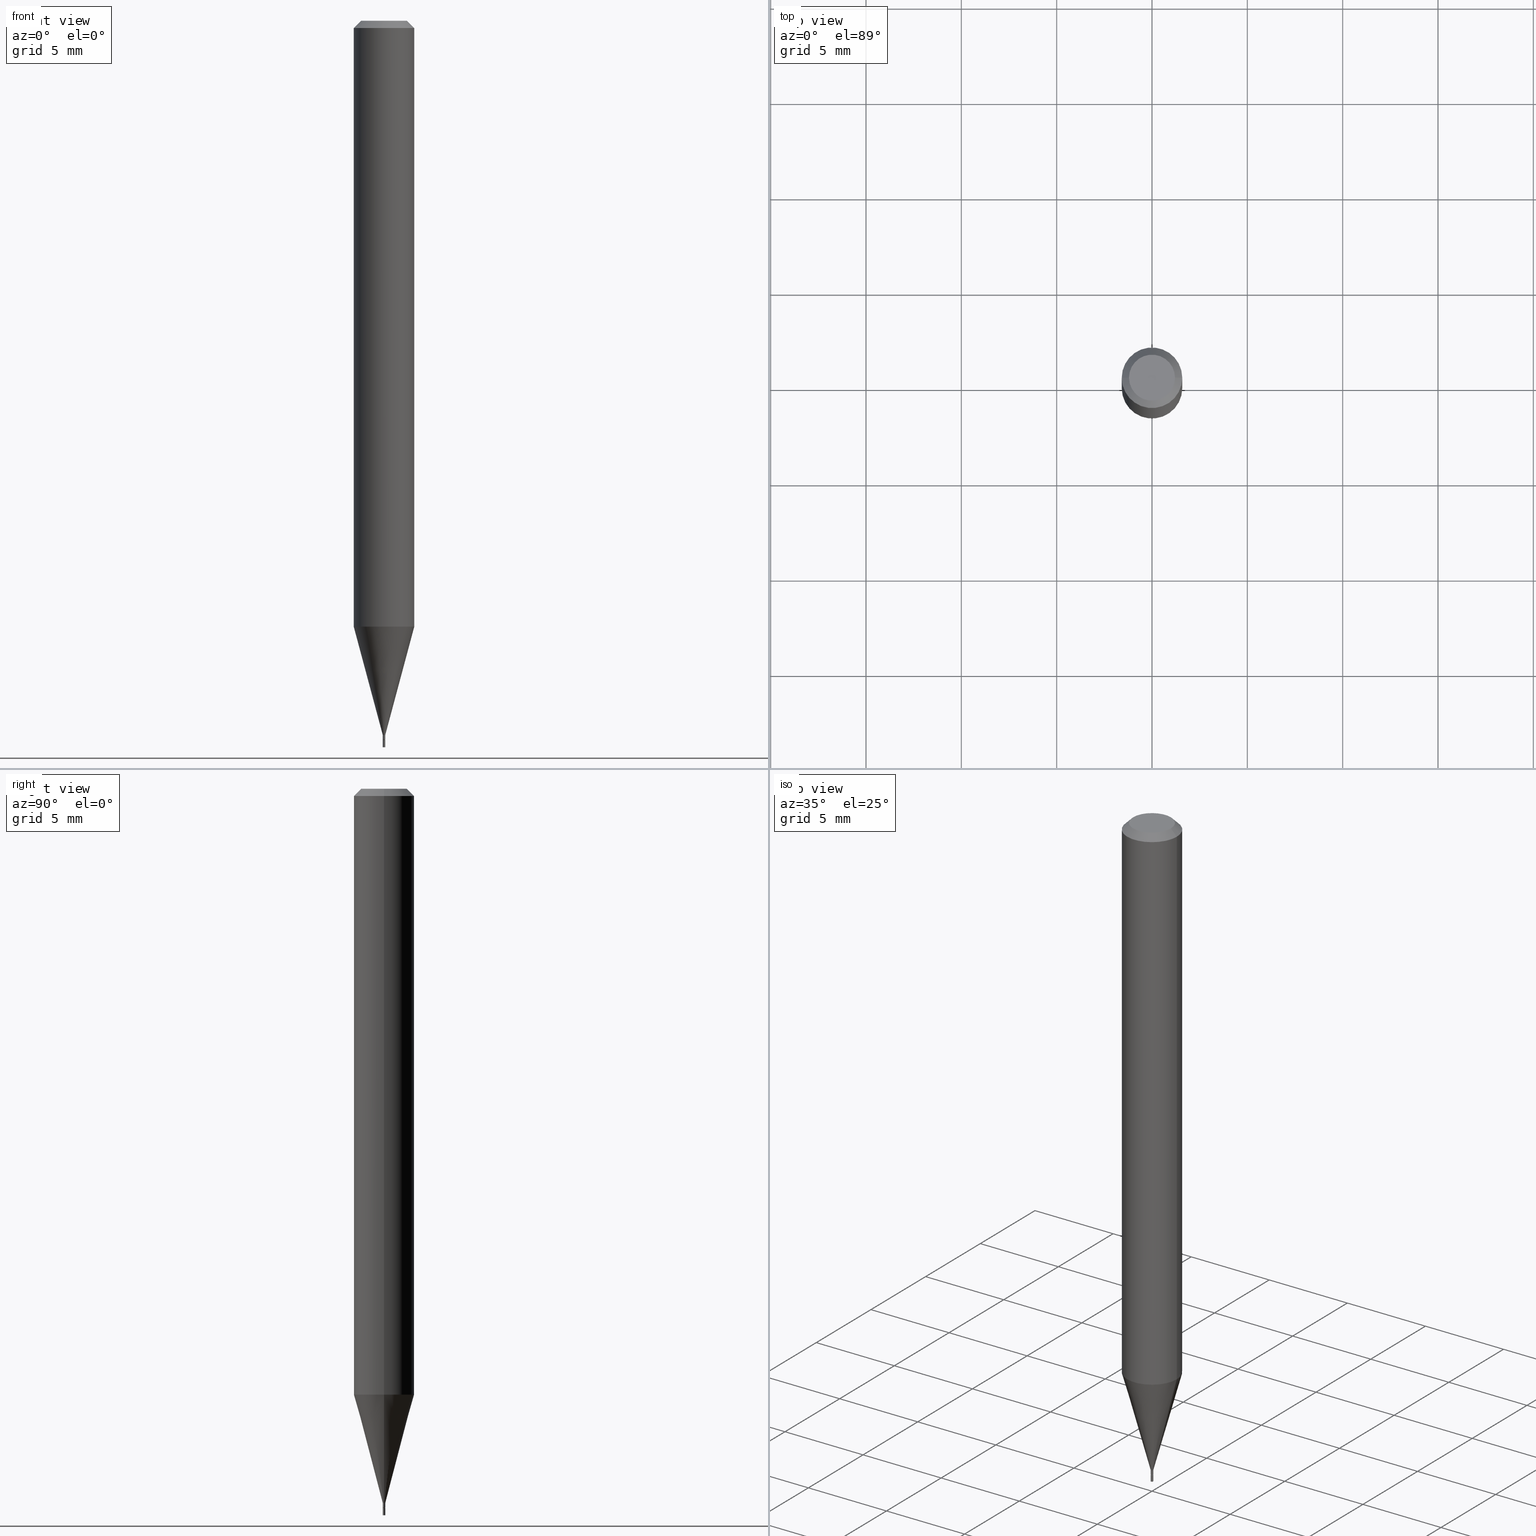
[diagram: canonical four-view strip — front | top / right | iso, engineering-drawing reading convention]
A machine part, canonical four-view strip (front | top / right | iso — engineering-drawing reading convention). The complete STEP part file that produces these views, byte-faithful:
ISO-10303-21;
HEADER;
FILE_DESCRIPTION (( 'STEP AP203' ),
    '1' );
FILE_NAME ('02312.STEP',
    '2024-03-18T20:05:01',
    ( '' ),
    ( '' ),
    'SwSTEP 2.0',
    'SolidWorks 2023',
    '' );
FILE_SCHEMA (( 'CONFIG_CONTROL_DESIGN' ));
ENDSEC;

DATA;
#1 = EDGE_CURVE ( 'NONE', #264, #444, #247, .T. ) ;
#2 = DIRECTION ( 'NONE',  ( -1.000000000000000000, 6.982962677686266711E-15, 0.000000000000000000 ) ) ;
#3 = FACE_OUTER_BOUND ( 'NONE', #464, .T. ) ;
#4 = VECTOR ( 'NONE', #233, 39.37007874015748143 ) ;
#5 = PERSON ( 'UNSPECIFIED', 'UNSPECIFIED', 'UNSPECIFIED', ('UNSPECIFIED'), ('UNSPECIFIED'), ('UNSPECIFIED') ) ;
#6 = VECTOR ( 'NONE', #175, 39.37007874015748143 ) ;
#7 = PERSON_AND_ORGANIZATION ( #5, #168 ) ;
#8 = EDGE_CURVE ( 'NONE', #338, #461, #285, .T. ) ;
#9 = APPLICATION_PROTOCOL_DEFINITION ( 'international standard', 'config_control_design', 1994, #358 ) ;
#10 = ORIENTED_EDGE ( 'NONE', *, *, #56, .F. ) ;
#11 = EDGE_LOOP ( 'NONE', ( #405, #115, #118, #190 ) ) ;
#12 = LOCAL_TIME ( 16, 5, 1.000000000000000000, #348 ) ;
#13 = APPROVAL_ROLE ( '' ) ;
#14 = EDGE_LOOP ( 'NONE', ( #407, #428 ) ) ;
#15 = MECHANICAL_CONTEXT ( 'NONE', #358, 'mechanical' ) ;
#16 = EDGE_LOOP ( 'NONE', ( #47, #334, #399, #54 ) ) ;
#17 = ORIENTED_EDGE ( 'NONE', *, *, #1, .T. ) ;
#18 = EDGE_CURVE ( 'NONE', #444, #342, #66, .T. ) ;
#19 = DIRECTION ( 'NONE',  ( 0.2588190451025214611, 1.565188264969620982E-15, 0.9659258262890679791 ) ) ;
#20 = CIRCLE ( 'NONE', #130, 0.001999999999999999608 ) ;
#21 = CONICAL_SURFACE ( 'NONE', #454, 0.001999999999999999608, 0.7853981633974718157 ) ;
#22 = ADVANCED_FACE ( 'NONE', ( #466 ), #144, .T. ) ;
#23 = CARTESIAN_POINT ( 'NONE',  ( -0.002499999999999921989, -5.165340479118648651E-15, -1.484500000000000153 ) ) ;
#24 = EDGE_CURVE ( 'NONE', #300, #342, #97, .T. ) ;
#25 = CARTESIAN_POINT ( 'NONE',  ( 1.745740669425197348E-17, 0.002499999999994814096, -1.485000000000000098 ) ) ;
#26 = DIRECTION ( 'NONE',  ( 2.438088387897960049E-29, -3.491481338843145188E-15, -1.000000000000000000 ) ) ;
#27 = PERSON_AND_ORGANIZATION ( #5, #168 ) ;
#28 = DIRECTION ( 'NONE',  ( -0.2588190451025214611, 5.211531920934550253E-15, 0.9659258262890679791 ) ) ;
#29 = ADVANCED_FACE ( 'NONE', ( #249 ), #431, .T. ) ;
#30 = SHAPE_DEFINITION_REPRESENTATION ( #312, #32 ) ;
#31 = EDGE_CURVE ( 'NONE', #300, #264, #211, .T. ) ;
#32 = ADVANCED_BREP_SHAPE_REPRESENTATION ( '02312', ( #376, #72, #340 ), #286 ) ;
#33 = AXIS2_PLACEMENT_3D ( 'NONE', #143, #182, #39 ) ;
#34 = CARTESIAN_POINT ( 'NONE',  ( 3.631521177184928138E-29, -5.184849788182071492E-15, -1.485000000000000098 ) ) ;
#35 = CARTESIAN_POINT ( 'NONE',  ( 3.607066489123076592E-29, -5.149934974793640632E-15, -1.475000000000000311 ) ) ;
#36 = CARTESIAN_POINT ( 'NONE',  ( -0.002499999999999998751, -5.193272329829392708E-15, -1.485000000000000098 ) ) ;
#37 = DIRECTION ( 'NONE',  ( -2.445468806185136597E-29, 3.491481338843145583E-15, 1.000000000000000000 ) ) ;
#38 = ORIENTED_EDGE ( 'NONE', *, *, #218, .T. ) ;
#39 = DIRECTION ( 'NONE',  ( 1.000000000000000000, -6.982962677686356641E-15, 0.000000000000000000 ) ) ;
#40 = AXIS2_PLACEMENT_3D ( 'NONE', #311, #26, #279 ) ;
#41 = ORIENTED_EDGE ( 'NONE', *, *, #251, .T. ) ;
#42 = LINE ( 'NONE', #76, #6 ) ;
#43 = CARTESIAN_POINT ( 'NONE',  ( -0.002499999999999998751, -5.193272329829392708E-15, -1.500000000000000222 ) ) ;
#44 = AXIS2_PLACEMENT_3D ( 'NONE', #420, #448, #378 ) ;
#45 = DATE_AND_TIME ( #299, #116 ) ;
#46 = ORIENTED_EDGE ( 'NONE', *, *, #308, .T. ) ;
#47 = ORIENTED_EDGE ( 'NONE', *, *, #259, .T. ) ;
#48 = CC_DESIGN_PERSON_AND_ORGANIZATION_ASSIGNMENT ( #436, #114, ( #306 ) ) ;
#49 = DIRECTION ( 'NONE',  ( 0.000000000000000000, 0.000000000000000000, 1.000000000000000000 ) ) ;
#50 = ORIENTED_EDGE ( 'NONE', *, *, #63, .F. ) ;
#51 = CIRCLE ( 'NONE', #109, 0.002499999999999921989 ) ;
#52 = VECTOR ( 'NONE', #406, 39.37007874015748143 ) ;
#53 = ORIENTED_EDGE ( 'NONE', *, *, #289, .F. ) ;
#54 = ORIENTED_EDGE ( 'NONE', *, *, #232, .F. ) ;
#55 = CARTESIAN_POINT ( 'NONE',  ( 3.059469659142613603E-29, -4.368111829779168212E-15, -1.251076951545867955 ) ) ;
#56 = EDGE_CURVE ( 'NONE', #369, #444, #284, .T. ) ;
#57 = FACE_OUTER_BOUND ( 'NONE', #86, .T. ) ;
#58 = AXIS2_PLACEMENT_3D ( 'NONE', #61, #350, #96 ) ;
#59 = ORIENTED_EDGE ( 'NONE', *, *, #63, .T. ) ;
#60 = CIRCLE ( 'NONE', #204, 0.04749999999999999362 ) ;
#61 = CARTESIAN_POINT ( 'NONE',  ( 0.000000000000000000, 0.000000000000000000, 0.000000000000000000 ) ) ;
#62 = PLANE ( 'NONE',  #229 ) ;
#63 = EDGE_CURVE ( 'NONE', #383, #341, #274, .T. ) ;
#64 = DIRECTION ( 'NONE',  ( -2.445468806185136597E-29, 3.491481338843145583E-15, 1.000000000000000000 ) ) ;
#65 = DIRECTION ( 'NONE',  ( -2.445468806185136877E-29, 3.491481338843145188E-15, 1.000000000000000000 ) ) ;
#66 = CIRCLE ( 'NONE', #331, 0.06250000000000000000 ) ;
#67 = LINE ( 'NONE', #149, #94 ) ;
#68 = CARTESIAN_POINT ( 'NONE',  ( 0.06250000000000000000, -4.811533449433679005E-16, -0.01499999999999999944 ) ) ;
#69 = CYLINDRICAL_SURFACE ( 'NONE', #192, 0.06250000000000000000 ) ;
#70 = ORIENTED_EDGE ( 'NONE', *, *, #18, .T. ) ;
#71 = CARTESIAN_POINT ( 'NONE',  ( 3.630298442781835897E-29, -5.183104047512649988E-15, -1.484500000000000153 ) ) ;
#72 = MANIFOLD_SOLID_BREP ( 'Body-Move/Copy2[2]', #385 ) ;
#73 = ORIENTED_EDGE ( 'NONE', *, *, #227, .T. ) ;
#74 = DIRECTION ( 'NONE',  ( -0.7071067811865642261, 7.493145998870414114E-15, 0.7071067811865309194 ) ) ;
#75 = AXIS2_PLACEMENT_3D ( 'NONE', #354, #174, #320 ) ;
#76 = CARTESIAN_POINT ( 'NONE',  ( 0.002499999999999921989, -1.745740669421512197E-17, 1.219044193948946113E-31 ) ) ;
#77 = ADVANCED_FACE ( 'NONE', ( #57 ), #273, .T. ) ;
#78 = COORDINATED_UNIVERSAL_TIME_OFFSET ( 5, 0, .BEHIND. ) ;
#79 = CALENDAR_DATE ( 2024, 18, 3 ) ;
#80 = ORIENTED_EDGE ( 'NONE', *, *, #456, .F. ) ;
#81 = AXIS2_PLACEMENT_3D ( 'NONE', #93, #452, #95 ) ;
#82 = ORIENTED_EDGE ( 'NONE', *, *, #147, .F. ) ;
#83 =( NAMED_UNIT ( * ) SI_UNIT ( $, .STERADIAN. ) SOLID_ANGLE_UNIT ( ) );
#84 = ORIENTED_EDGE ( 'NONE', *, *, #8, .F. ) ;
#85 = SECURITY_CLASSIFICATION_LEVEL ( 'unclassified' ) ;
#86 = EDGE_LOOP ( 'NONE', ( #136, #59, #437, #84 ) ) ;
#87 = AXIS2_PLACEMENT_3D ( 'NONE', #35, #171, #459 ) ;
#88 = EDGE_LOOP ( 'NONE', ( #73, #208, #154, #187 ) ) ;
#89 = APPROVAL_ROLE ( '' ) ;
#90 = FACE_OUTER_BOUND ( 'NONE', #88, .T. ) ;
#91 = VERTEX_POINT ( 'NONE', #347 ) ;
#92 =( CONVERSION_BASED_UNIT ( 'INCH', #98 ) LENGTH_UNIT ( ) NAMED_UNIT ( #237 ) );
#93 = CARTESIAN_POINT ( 'NONE',  ( 3.668203209277704895E-29, -5.237222008264718177E-15, -1.500000000000000222 ) ) ;
#94 = VECTOR ( 'NONE', #74, 39.37007874015748143 ) ;
#95 = DIRECTION ( 'NONE',  ( 1.000000000000000000, -6.982962677686142071E-15, 0.000000000000000000 ) ) ;
#96 = DIRECTION ( 'NONE',  ( 1.000000000000000000, -6.982962677686266711E-15, 4.876176775795936914E-29 ) ) ;
#97 = LINE ( 'NONE', #242, #257 ) ;
#98 = LENGTH_MEASURE_WITH_UNIT ( LENGTH_MEASURE( 0.02539999999999999897 ), #134 );
#99 = CARTESIAN_POINT ( 'NONE',  ( 3.576687321579069994E-29, -5.368277968210015545E-15, -1.500000000000000222 ) ) ;
#100 = DIRECTION ( 'NONE',  ( 1.000000000000000000, -6.982962677686142071E-15, 0.000000000000000000 ) ) ;
#101 = VECTOR ( 'NONE', #206, 39.37007874015748143 ) ;
#102 = DIRECTION ( 'NONE',  ( 2.445468806185136597E-29, -3.491481338843145583E-15, -1.000000000000000000 ) ) ;
#103 = CARTESIAN_POINT ( 'NONE',  ( 0.000000000000000000, 0.000000000000000000, 0.000000000000000000 ) ) ;
#104 = FACE_OUTER_BOUND ( 'NONE', #158, .T. ) ;
#105 = ORIENTED_EDGE ( 'NONE', *, *, #31, .T. ) ;
#106 = DIRECTION ( 'NONE',  ( -2.445468806185136597E-29, 3.491481338843145583E-15, 1.000000000000000000 ) ) ;
#107 = DIRECTION ( 'NONE',  ( -2.445468806185136877E-29, 3.491481338843145188E-15, 1.000000000000000000 ) ) ;
#108 = DIRECTION ( 'NONE',  ( -2.445468806185136597E-29, 3.491481338843145583E-15, 1.000000000000000000 ) ) ;
#109 = AXIS2_PLACEMENT_3D ( 'NONE', #71, #465, #353 ) ;
#110 = CC_DESIGN_APPROVAL ( #139, ( #306 ) ) ;
#111 = ADVANCED_FACE ( 'NONE', ( #90 ), #161, .T. ) ;
#112 = DIRECTION ( 'NONE',  ( 1.000000000000000000, -6.982962677686267499E-15, 4.852736867747366768E-29 ) ) ;
#113 = VERTEX_POINT ( 'NONE', #197 ) ;
#114 = PERSON_AND_ORGANIZATION_ROLE ( 'classification_officer' ) ;
#115 = ORIENTED_EDGE ( 'NONE', *, *, #214, .T. ) ;
#116 = LOCAL_TIME ( 16, 5, 1.000000000000000000, #152 ) ;
#117 = PERSON_AND_ORGANIZATION ( #5, #168 ) ;
#118 = ORIENTED_EDGE ( 'NONE', *, *, #408, .T. ) ;
#119 = PRODUCT_DEFINITION ( 'UNKNOWN', '', #178, #429 ) ;
#120 = LINE ( 'NONE', #261, #52 ) ;
#121 = APPLICATION_CONTEXT ( 'configuration controlled 3d designs of mechanical parts and assemblies' ) ;
#122 = PERSON_AND_ORGANIZATION_ROLE ( 'creator' ) ;
#123 = EDGE_LOOP ( 'NONE', ( #82, #50 ) ) ;
#124 = ORIENTED_EDGE ( 'NONE', *, *, #209, .T. ) ;
#125 = CARTESIAN_POINT ( 'NONE',  ( 0.06250000000000000000, -4.804546997134559881E-15, -1.251076951545867955 ) ) ;
#126 = CARTESIAN_POINT ( 'NONE',  ( 3.607066489123076592E-29, -5.149934974793640632E-15, -1.475000000000000311 ) ) ;
#127 = CALENDAR_DATE ( 2024, 18, 3 ) ;
#128 = CC_DESIGN_PERSON_AND_ORGANIZATION_ASSIGNMENT ( #263, #297, ( #178 ) ) ;
#129 = LINE ( 'NONE', #349, #438 ) ;
#130 = AXIS2_PLACEMENT_3D ( 'NONE', #240, #243, #162 ) ;
#131 = CC_DESIGN_SECURITY_CLASSIFICATION ( #306, ( #178 ) ) ;
#132 = DIRECTION ( 'NONE',  ( -2.445468806185136597E-29, 3.491481338843145583E-15, 1.000000000000000000 ) ) ;
#133 = DATE_TIME_ROLE ( 'classification_date' ) ;
#134 =( LENGTH_UNIT ( ) NAMED_UNIT ( * ) SI_UNIT ( $, .METRE. ) );
#135 = FACE_OUTER_BOUND ( 'NONE', #14, .T. ) ;
#136 = ORIENTED_EDGE ( 'NONE', *, *, #251, .F. ) ;
#137 = DIRECTION ( 'NONE',  ( 1.000000000000000000, -6.982962677686356641E-15, 0.000000000000000000 ) ) ;
#138 = DIRECTION ( 'NONE',  ( 1.000000000000000000, -6.982962677686270655E-15, 0.000000000000000000 ) ) ;
#139 = APPROVAL ( #272, 'UNSPECIFIED' ) ;
#140 = CLOSED_SHELL ( 'NONE', ( #270, #193, #77, #449 ) ) ;
#141 = VECTOR ( 'NONE', #19, 39.37007874015748143 ) ;
#142 = LOCAL_TIME ( 16, 5, 1.000000000000000000, #184 ) ;
#143 = CARTESIAN_POINT ( 'NONE',  ( 3.607066489123076592E-29, -5.149934974793640632E-15, -1.475000000000000311 ) ) ;
#144 = CYLINDRICAL_SURFACE ( 'NONE', #167, 0.002499999999999921989 ) ;
#145 = CYLINDRICAL_SURFACE ( 'NONE', #293, 0.002499999999999998751 ) ;
#146 = DIRECTION ( 'NONE',  ( -2.445468806185136597E-29, 3.491481338843145583E-15, 1.000000000000000000 ) ) ;
#147 = EDGE_CURVE ( 'NONE', #341, #383, #339, .T. ) ;
#148 = FACE_OUTER_BOUND ( 'NONE', #373, .T. ) ;
#149 = CARTESIAN_POINT ( 'NONE',  ( -0.001999999999999999608, -5.170638933466869476E-15, -1.485000000000000098 ) ) ;
#150 = CIRCLE ( 'NONE', #411, 0.04749999999999999362 ) ;
#151 = CIRCLE ( 'NONE', #253, 0.002499999999999921989 ) ;
#152 = COORDINATED_UNIVERSAL_TIME_OFFSET ( 5, 0, .BEHIND. ) ;
#153 = PERSON_AND_ORGANIZATION ( #5, #168 ) ;
#154 = ORIENTED_EDGE ( 'NONE', *, *, #18, .F. ) ;
#155 = CC_DESIGN_DATE_AND_TIME_ASSIGNMENT ( #451, #133, ( #306 ) ) ;
#156 = ORIENTED_EDGE ( 'NONE', *, *, #173, .F. ) ;
#157 = CONICAL_SURFACE ( 'NONE', #412, 0.002499999999999921989, 0.2617993877991501850 ) ;
#158 = EDGE_LOOP ( 'NONE', ( #80, #195, #367, #260 ) ) ;
#159 = CARTESIAN_POINT ( 'NONE',  ( 0.000000000000000000, 0.000000000000000000, 0.000000000000000000 ) ) ;
#160 = VERTEX_POINT ( 'NONE', #346 ) ;
#161 = CYLINDRICAL_SURFACE ( 'NONE', #400, 0.06250000000000000000 ) ;
#162 = DIRECTION ( 'NONE',  ( 1.000000000000000000, -6.982962677686334553E-15, 0.000000000000000000 ) ) ;
#163 = PLANE ( 'NONE',  #40 ) ;
#164 = APPROVAL ( #398, 'UNSPECIFIED' ) ;
#165 = ORIENTED_EDGE ( 'NONE', *, *, #56, .T. ) ;
#166 = CARTESIAN_POINT ( 'NONE',  ( -0.002499999999999998751, 1.776356839400249577E-17, -1.229733772563725911E-31 ) ) ;
#167 = AXIS2_PLACEMENT_3D ( 'NONE', #103, #146, #252 ) ;
#168 = ORGANIZATION ( 'UNSPECIFIED', 'UNSPECIFIED', '' ) ;
#169 = DIRECTION ( 'NONE',  ( 2.438088387897960049E-29, -3.491481338843145188E-15, -1.000000000000000000 ) ) ;
#170 = CARTESIAN_POINT ( 'NONE',  ( -1.505681066337554235E-44, 2.149713515899588158E-30, 6.157024217726067260E-16 ) ) ;
#171 = DIRECTION ( 'NONE',  ( -2.445468806185136597E-29, 3.491481338843145583E-15, 1.000000000000000000 ) ) ;
#172 = DIRECTION ( 'NONE',  ( -2.445468806185136597E-29, 3.491481338843145583E-15, 1.000000000000000000 ) ) ;
#173 = EDGE_CURVE ( 'NONE', #291, #369, #150, .T. ) ;
#174 = DIRECTION ( 'NONE',  ( -2.445468806185136597E-29, 3.491481338843145583E-15, 1.000000000000000000 ) ) ;
#175 = DIRECTION ( 'NONE',  ( -2.445468806185136877E-29, 3.491481338843145188E-15, 1.000000000000000000 ) ) ;
#176 = CARTESIAN_POINT ( 'NONE',  ( 3.631521177184928138E-29, -5.184849788182071492E-15, -1.485000000000000098 ) ) ;
#177 = CONICAL_SURFACE ( 'NONE', #44, 0.001999999999999999608, 0.7853981633974718157 ) ;
#178 = PRODUCT_DEFINITION_FORMATION_WITH_SPECIFIED_SOURCE ( 'ANY', '', #379, .NOT_KNOWN. ) ;
#179 = FACE_OUTER_BOUND ( 'NONE', #303, .T. ) ;
#180 = CARTESIAN_POINT ( 'NONE',  ( 3.668203209277705088E-31, -5.237222008264718399E-17, -0.01499999999999999944 ) ) ;
#181 = ADVANCED_FACE ( 'NONE', ( #135 ), #163, .F. ) ;
#182 = DIRECTION ( 'NONE',  ( -2.445468806185136597E-29, 3.491481338843145583E-15, 1.000000000000000000 ) ) ;
#183 = FACE_OUTER_BOUND ( 'NONE', #296, .T. ) ;
#184 = COORDINATED_UNIVERSAL_TIME_OFFSET ( 5, 0, .BEHIND. ) ;
#185 = VECTOR ( 'NONE', #107, 39.37007874015748143 ) ;
#186 = DIRECTION ( 'NONE',  ( 1.000000000000000000, 0.000000000000000000, 0.000000000000000000 ) ) ;
#187 = ORIENTED_EDGE ( 'NONE', *, *, #1, .F. ) ;
#188 = EDGE_LOOP ( 'NONE', ( #46, #230, #356, #239 ) ) ;
#189 = PERSON_AND_ORGANIZATION ( #5, #168 ) ;
#190 = ORIENTED_EDGE ( 'NONE', *, *, #371, .F. ) ;
#191 = AXIS2_PLACEMENT_3D ( 'NONE', #126, #64, #314 ) ;
#192 = AXIS2_PLACEMENT_3D ( 'NONE', #462, #460, #205 ) ;
#193 = ADVANCED_FACE ( 'NONE', ( #238 ), #62, .F. ) ;
#194 = VERTEX_POINT ( 'NONE', #23 ) ;
#195 = ORIENTED_EDGE ( 'NONE', *, *, #371, .T. ) ;
#196 = DIRECTION ( 'NONE',  ( 1.000000000000000000, -6.982962677686270655E-15, 0.000000000000000000 ) ) ;
#197 = CARTESIAN_POINT ( 'NONE',  ( 0.001999999999999999608, -5.198815713537444309E-15, -1.485000000000000098 ) ) ;
#198 = CIRCLE ( 'NONE', #395, 0.06250000000000000000 ) ;
#199 = CARTESIAN_POINT ( 'NONE',  ( 3.668203209277705088E-31, -5.237222008264718399E-17, -0.01499999999999999944 ) ) ;
#200 = DIRECTION ( 'NONE',  ( 1.000000000000000000, -6.982962677686265922E-15, 4.876176775795935793E-29 ) ) ;
#201 = LINE ( 'NONE', #344, #141 ) ;
#202 = ORIENTED_EDGE ( 'NONE', *, *, #31, .F. ) ;
#203 = CIRCLE ( 'NONE', #222, 0.001999999999999999608 ) ;
#204 = AXIS2_PLACEMENT_3D ( 'NONE', #355, #37, #112 ) ;
#205 = DIRECTION ( 'NONE',  ( 1.000000000000000000, -6.982962677686266711E-15, 4.876176775795935793E-29 ) ) ;
#206 = DIRECTION ( 'NONE',  ( 0.7071067811865330288, -7.319954787623207136E-15, -0.7071067811865620056 ) ) ;
#207 = CARTESIAN_POINT ( 'NONE',  ( 0.002499999999999998751, -1.745740669421565815E-17, 1.219044193948983554E-31 ) ) ;
#208 = ORIENTED_EDGE ( 'NONE', *, *, #24, .T. ) ;
#209 = EDGE_CURVE ( 'NONE', #342, #444, #375, .T. ) ;
#210 = DIRECTION ( 'NONE',  ( -2.438088387897960049E-29, 3.491481338843145188E-15, 1.000000000000000000 ) ) ;
#211 = CIRCLE ( 'NONE', #423, 0.06250000000000000000 ) ;
#212 = AXIS2_PLACEMENT_3D ( 'NONE', #330, #384, #223 ) ;
#213 = CARTESIAN_POINT ( 'NONE',  ( -0.04749999999999999362, 3.578768372314221353E-16, 6.157024217726043594E-16 ) ) ;
#214 = EDGE_CURVE ( 'NONE', #440, #113, #203, .T. ) ;
#215 = DIRECTION ( 'NONE',  ( -0.7071067811865330288, 2.468850131082105205E-15, -0.7071067811865620056 ) ) ;
#216 = CARTESIAN_POINT ( 'NONE',  ( 0.002499999999999921989, -5.167392381487856456E-15, -1.475000000000000311 ) ) ;
#217 = APPROVAL_DATE_TIME ( #434, #164 ) ;
#218 = EDGE_CURVE ( 'NONE', #113, #440, #20, .T. ) ;
#219 = DATE_AND_TIME ( #332, #142 ) ;
#220 = ORIENTED_EDGE ( 'NONE', *, *, #209, .F. ) ;
#221 = EDGE_CURVE ( 'NONE', #91, #300, #129, .T. ) ;
#222 = AXIS2_PLACEMENT_3D ( 'NONE', #34, #132, #458 ) ;
#223 = DIRECTION ( 'NONE',  ( -1.000000000000000000, 6.982962677686266711E-15, 0.000000000000000000 ) ) ;
#224 = VECTOR ( 'NONE', #65, 39.37007874015748143 ) ;
#225 = ORIENTED_EDGE ( 'NONE', *, *, #382, .T. ) ;
#226 = ORIENTED_EDGE ( 'NONE', *, *, #8, .T. ) ;
#227 = EDGE_CURVE ( 'NONE', #264, #300, #198, .T. ) ;
#228 = ORIENTED_EDGE ( 'NONE', *, *, #147, .T. ) ;
#229 = AXIS2_PLACEMENT_3D ( 'NONE', #99, #455, #200 ) ;
#230 = ORIENTED_EDGE ( 'NONE', *, *, #456, .T. ) ;
#231 = DIRECTION ( 'NONE',  ( -2.445468806185136597E-29, 3.491481338843145583E-15, 1.000000000000000000 ) ) ;
#232 = EDGE_CURVE ( 'NONE', #410, #264, #201, .T. ) ;
#233 = DIRECTION ( 'NONE',  ( -2.445468806185136877E-29, 3.491481338843145188E-15, 1.000000000000000000 ) ) ;
#234 = AXIS2_PLACEMENT_3D ( 'NONE', #389, #325, #250 ) ;
#235 = CALENDAR_DATE ( 2024, 18, 3 ) ;
#236 =( NAMED_UNIT ( * ) PLANE_ANGLE_UNIT ( ) SI_UNIT ( $, .RADIAN. ) );
#237 = DIMENSIONAL_EXPONENTS ( 1.000000000000000000, 0.000000000000000000, 0.000000000000000000, 0.000000000000000000, 0.000000000000000000, 0.000000000000000000, 0.000000000000000000 ) ;
#238 = FACE_OUTER_BOUND ( 'NONE', #123, .T. ) ;
#239 = ORIENTED_EDGE ( 'NONE', *, *, #362, .F. ) ;
#240 = CARTESIAN_POINT ( 'NONE',  ( 3.631521177184928138E-29, -5.184849788182071492E-15, -1.485000000000000098 ) ) ;
#241 = EDGE_CURVE ( 'NONE', #461, #338, #315, .T. ) ;
#242 = CARTESIAN_POINT ( 'NONE',  ( -0.06250000000000000000, 4.440892098500626162E-16, -3.074334431409316114E-30 ) ) ;
#243 = DIRECTION ( 'NONE',  ( -2.445468806185136597E-29, 3.491481338843145583E-15, 1.000000000000000000 ) ) ;
#244 = CARTESIAN_POINT ( 'NONE',  ( 3.059469659142613603E-29, -4.368111829779168212E-15, -1.251076951545867955 ) ) ;
#245 = AXIS2_PLACEMENT_3D ( 'NONE', #276, #307, #414 ) ;
#246 = CARTESIAN_POINT ( 'NONE',  ( 3.631521177184928138E-29, -5.184849788182071492E-15, -1.485000000000000098 ) ) ;
#247 = LINE ( 'NONE', #390, #185 ) ;
#248 = DIRECTION ( 'NONE',  ( 1.000000000000000000, -6.982962677686265922E-15, 4.876176775795935793E-29 ) ) ;
#249 = FACE_OUTER_BOUND ( 'NONE', #255, .T. ) ;
#250 = DIRECTION ( 'NONE',  ( 1.000000000000000000, -6.982962677686266711E-15, 4.876176775795936353E-29 ) ) ;
#251 = EDGE_CURVE ( 'NONE', #383, #338, #309, .T. ) ;
#252 = DIRECTION ( 'NONE',  ( 1.000000000000000000, -6.982962677686266711E-15, 4.876176775795936353E-29 ) ) ;
#253 = AXIS2_PLACEMENT_3D ( 'NONE', #430, #108, #137 ) ;
#254 = LINE ( 'NONE', #397, #418 ) ;
#255 = EDGE_LOOP ( 'NONE', ( #326, #304, #310, #202 ) ) ;
#256 = ORIENTED_EDGE ( 'NONE', *, *, #214, .F. ) ;
#257 = VECTOR ( 'NONE', #426, 39.37007874015748143 ) ;
#258 = FACE_OUTER_BOUND ( 'NONE', #298, .T. ) ;
#259 = EDGE_CURVE ( 'NONE', #410, #91, #267, .T. ) ;
#260 = ORIENTED_EDGE ( 'NONE', *, *, #366, .F. ) ;
#261 = CARTESIAN_POINT ( 'NONE',  ( 0.001999999999999999608, -5.198815713537444309E-15, -1.485000000000000098 ) ) ;
#262 = ADVANCED_FACE ( 'NONE', ( #268 ), #177, .T. ) ;
#263 = PERSON_AND_ORGANIZATION ( #5, #168 ) ;
#264 = VERTEX_POINT ( 'NONE', #125 ) ;
#265 = APPLICATION_PROTOCOL_DEFINITION ( 'international standard', 'config_control_design', 1994, #121 ) ;
#266 = ORIENTED_EDGE ( 'NONE', *, *, #343, .F. ) ;
#267 = CIRCLE ( 'NONE', #191, 0.002499999999999921989 ) ;
#268 = FACE_OUTER_BOUND ( 'NONE', #11, .T. ) ;
#269 = ADVANCED_FACE ( 'NONE', ( #271 ), #453, .T. ) ;
#270 = ADVANCED_FACE ( 'NONE', ( #3 ), #145, .T. ) ;
#271 = FACE_OUTER_BOUND ( 'NONE', #424, .T. ) ;
#272 = APPROVAL_STATUS ( 'not_yet_approved' ) ;
#273 = CYLINDRICAL_SURFACE ( 'NONE', #58, 0.002499999999999998751 ) ;
#274 = CIRCLE ( 'NONE', #75, 0.002499999999999998751 ) ;
#275 = CIRCLE ( 'NONE', #33, 0.002499999999999921989 ) ;
#276 = CARTESIAN_POINT ( 'NONE',  ( 3.631521177184928138E-29, -5.184849788182071492E-15, -1.485000000000000098 ) ) ;
#277 = ADVANCED_FACE ( 'NONE', ( #104 ), #393, .T. ) ;
#278 = EDGE_CURVE ( 'NONE', #440, #194, #67, .T. ) ;
#279 = DIRECTION ( 'NONE',  ( -1.000000000000000000, 6.982962677686265922E-15, -4.876176775795935793E-29 ) ) ;
#280 = ORIENTED_EDGE ( 'NONE', *, *, #241, .F. ) ;
#281 = CARTESIAN_POINT ( 'NONE',  ( 0.000000000000000000, 0.000000000000000000, 0.000000000000000000 ) ) ;
#282 = CARTESIAN_POINT ( 'NONE',  ( 0.06250000000000000000, -4.888073874380388472E-16, -0.01499999999999999944 ) ) ;
#283 = ADVANCED_FACE ( 'NONE', ( #148 ), #287, .F. ) ;
#284 = LINE ( 'NONE', #68, #101 ) ;
#285 = CIRCLE ( 'NONE', #305, 0.002499999999999998751 ) ;
#286 =( GEOMETRIC_REPRESENTATION_CONTEXT ( 3 ) GLOBAL_UNCERTAINTY_ASSIGNED_CONTEXT ( ( #352 ) ) GLOBAL_UNIT_ASSIGNED_CONTEXT ( ( #92, #236, #83 ) ) REPRESENTATION_CONTEXT ( 'NONE', 'WORKASPACE' ) );
#287 = PLANE ( 'NONE',  #463 ) ;
#288 = DIRECTION ( 'NONE',  ( -2.445468806185136597E-29, 3.491481338843145583E-15, 1.000000000000000000 ) ) ;
#289 = EDGE_CURVE ( 'NONE', #341, #461, #391, .T. ) ;
#290 = CARTESIAN_POINT ( 'NONE',  ( 3.631521177184928138E-29, -5.184849788182071492E-15, -1.485000000000000098 ) ) ;
#291 = VERTEX_POINT ( 'NONE', #213 ) ;
#292 = CARTESIAN_POINT ( 'NONE',  ( 0.04749999999999999362, -4.035134999187568269E-16, 6.157024217726092898E-16 ) ) ;
#293 = AXIS2_PLACEMENT_3D ( 'NONE', #281, #106, #425 ) ;
#294 = DIRECTION ( 'NONE',  ( -2.445468806185136597E-29, 3.491481338843145583E-15, 1.000000000000000000 ) ) ;
#295 = CC_DESIGN_PERSON_AND_ORGANIZATION_ASSIGNMENT ( #364, #122, ( #119 ) ) ;
#296 = EDGE_LOOP ( 'NONE', ( #266, #165, #70, #351 ) ) ;
#297 = PERSON_AND_ORGANIZATION_ROLE ( 'design_supplier' ) ;
#298 = EDGE_LOOP ( 'NONE', ( #365, #226 ) ) ;
#299 = CALENDAR_DATE ( 2024, 18, 3 ) ;
#300 = VERTEX_POINT ( 'NONE', #319 ) ;
#301 = APPROVAL_PERSON_ORGANIZATION ( #27, #139, #89 ) ;
#302 = DATE_TIME_ROLE ( 'creation_date' ) ;
#303 = EDGE_LOOP ( 'NONE', ( #38, #370, #336, #402 ) ) ;
#304 = ORIENTED_EDGE ( 'NONE', *, *, #366, .T. ) ;
#305 = AXIS2_PLACEMENT_3D ( 'NONE', #176, #322, #100 ) ;
#306 = SECURITY_CLASSIFICATION ( '', '', #85 ) ;
#307 = DIRECTION ( 'NONE',  ( -2.445468806185136597E-29, 3.491481338843145583E-15, 1.000000000000000000 ) ) ;
#308 = EDGE_CURVE ( 'NONE', #160, #194, #51, .T. ) ;
#309 = LINE ( 'NONE', #166, #4 ) ;
#310 = ORIENTED_EDGE ( 'NONE', *, *, #232, .T. ) ;
#311 = CARTESIAN_POINT ( 'NONE',  ( 3.316907271900976096E-16, 0.04749999999999999362, 1.420058472912539912E-16 ) ) ;
#312 = PRODUCT_DEFINITION_SHAPE ( 'NONE', 'NONE',  #119 ) ;
#313 = ADVANCED_FACE ( 'NONE', ( #321 ), #157, .T. ) ;
#314 = DIRECTION ( 'NONE',  ( 1.000000000000000000, -6.982962677686356641E-15, 0.000000000000000000 ) ) ;
#315 = CIRCLE ( 'NONE', #245, 0.002499999999999998751 ) ;
#316 = CC_DESIGN_APPROVAL ( #443, ( #178 ) ) ;
#317 = LINE ( 'NONE', #413, #224 ) ;
#318 = DIRECTION ( 'NONE',  ( -2.445468806185136597E-29, 3.491481338843145583E-15, 1.000000000000000000 ) ) ;
#319 = CARTESIAN_POINT ( 'NONE',  ( -0.06250000000000000000, -3.924022619929106385E-15, -1.251076951545867955 ) ) ;
#320 = DIRECTION ( 'NONE',  ( 1.000000000000000000, -6.982962677686142071E-15, 0.000000000000000000 ) ) ;
#321 = FACE_OUTER_BOUND ( 'NONE', #16, .T. ) ;
#322 = DIRECTION ( 'NONE',  ( -2.445468806185136597E-29, 3.491481338843145583E-15, 1.000000000000000000 ) ) ;
#323 = AXIS2_PLACEMENT_3D ( 'NONE', #199, #102, #2 ) ;
#324 = APPROVAL_PERSON_ORGANIZATION ( #153, #164, #439 ) ;
#325 = DIRECTION ( 'NONE',  ( -2.445468806185136597E-29, 3.491481338843145583E-15, 1.000000000000000000 ) ) ;
#326 = ORIENTED_EDGE ( 'NONE', *, *, #221, .F. ) ;
#327 = DIRECTION ( 'NONE',  ( 1.000000000000000000, -6.982962677686334553E-15, 0.000000000000000000 ) ) ;
#328 = ADVANCED_FACE ( 'NONE', ( #361 ), #69, .T. ) ;
#329 = PRODUCT_RELATED_PRODUCT_CATEGORY ( 'detail', '', ( #379 ) ) ;
#330 = CARTESIAN_POINT ( 'NONE',  ( 3.668203209277705088E-31, -5.237222008264718399E-17, -0.01499999999999999944 ) ) ;
#331 = AXIS2_PLACEMENT_3D ( 'NONE', #180, #288, #359 ) ;
#332 = CALENDAR_DATE ( 2024, 18, 3 ) ;
#333 = PERSON_AND_ORGANIZATION_ROLE ( 'creator' ) ;
#334 = ORIENTED_EDGE ( 'NONE', *, *, #221, .T. ) ;
#335 = APPROVAL_STATUS ( 'not_yet_approved' ) ;
#336 = ORIENTED_EDGE ( 'NONE', *, *, #308, .F. ) ;
#337 = PERSON_AND_ORGANIZATION_ROLE ( 'design_owner' ) ;
#338 = VERTEX_POINT ( 'NONE', #36 ) ;
#339 = CIRCLE ( 'NONE', #81, 0.002499999999999998751 ) ;
#340 = AXIS2_PLACEMENT_3D ( 'NONE', #159, #49, #186 ) ;
#341 = VERTEX_POINT ( 'NONE', #432 ) ;
#342 = VERTEX_POINT ( 'NONE', #427 ) ;
#343 = EDGE_CURVE ( 'NONE', #369, #291, #60, .T. ) ;
#344 = CARTESIAN_POINT ( 'NONE',  ( 0.002499999999999921989, -5.167392381487856456E-15, -1.475000000000000311 ) ) ;
#345 = LOCAL_TIME ( 16, 5, 1.000000000000000000, #78 ) ;
#346 = CARTESIAN_POINT ( 'NONE',  ( 0.002499999999999921989, -5.200561454206865813E-15, -1.484500000000000153 ) ) ;
#347 = CARTESIAN_POINT ( 'NONE',  ( -0.002499999999999921989, -4.528097013164372840E-15, -1.475000000000000311 ) ) ;
#348 = COORDINATED_UNIVERSAL_TIME_OFFSET ( 5, 0, .BEHIND. ) ;
#349 = CARTESIAN_POINT ( 'NONE',  ( -0.002499999999999921989, -5.132171406399639295E-15, -1.475000000000000311 ) ) ;
#350 = DIRECTION ( 'NONE',  ( -2.445468806185136597E-29, 3.491481338843145583E-15, 1.000000000000000000 ) ) ;
#351 = ORIENTED_EDGE ( 'NONE', *, *, #382, .F. ) ;
#352 = UNCERTAINTY_MEASURE_WITH_UNIT (LENGTH_MEASURE( 1.000000000000000082E-05 ), #92, 'distance_accuracy_value', 'NONE');
#353 = DIRECTION ( 'NONE',  ( 1.000000000000000000, -6.982962677686356641E-15, 0.000000000000000000 ) ) ;
#354 = CARTESIAN_POINT ( 'NONE',  ( 3.668203209277704895E-29, -5.237222008264718177E-15, -1.500000000000000222 ) ) ;
#355 = CARTESIAN_POINT ( 'NONE',  ( -1.505681066337554235E-44, 2.149713515899588158E-30, 6.157024217726067260E-16 ) ) ;
#356 = ORIENTED_EDGE ( 'NONE', *, *, #259, .F. ) ;
#357 = CARTESIAN_POINT ( 'NONE',  ( 3.607066489123076592E-29, -5.149934974793640632E-15, -1.475000000000000311 ) ) ;
#358 = APPLICATION_CONTEXT ( 'configuration controlled 3d designs of mechanical parts and assemblies' ) ;
#359 = DIRECTION ( 'NONE',  ( 1.000000000000000000, -6.982962677686266711E-15, 0.000000000000000000 ) ) ;
#360 = VECTOR ( 'NONE', #363, 39.37007874015748143 ) ;
#361 = FACE_OUTER_BOUND ( 'NONE', #442, .T. ) ;
#362 = EDGE_CURVE ( 'NONE', #160, #410, #42, .T. ) ;
#363 = DIRECTION ( 'NONE',  ( -2.445468806185136877E-29, 3.491481338843145188E-15, 1.000000000000000000 ) ) ;
#364 = PERSON_AND_ORGANIZATION ( #5, #168 ) ;
#365 = ORIENTED_EDGE ( 'NONE', *, *, #241, .T. ) ;
#366 = EDGE_CURVE ( 'NONE', #91, #410, #275, .T. ) ;
#367 = ORIENTED_EDGE ( 'NONE', *, *, #362, .T. ) ;
#368 = ADVANCED_FACE ( 'NONE', ( #179 ), #21, .T. ) ;
#369 = VERTEX_POINT ( 'NONE', #292 ) ;
#370 = ORIENTED_EDGE ( 'NONE', *, *, #278, .T. ) ;
#371 = EDGE_CURVE ( 'NONE', #194, #160, #151, .T. ) ;
#372 = DATE_AND_TIME ( #127, #12 ) ;
#373 = EDGE_LOOP ( 'NONE', ( #392, #256 ) ) ;
#374 = DIRECTION ( 'NONE',  ( 1.000000000000000000, -6.982962677686266711E-15, 4.876176775795935793E-29 ) ) ;
#375 = CIRCLE ( 'NONE', #445, 0.06250000000000000000 ) ;
#376 = MANIFOLD_SOLID_BREP ( 'Body-Move/Copy2[1]', #140 ) ;
#377 = LOCAL_TIME ( 16, 5, 1.000000000000000000, #446 ) ;
#378 = DIRECTION ( 'NONE',  ( 1.000000000000000000, -6.982962677686334553E-15, 0.000000000000000000 ) ) ;
#379 = PRODUCT ( '02312', '02312', '', ( #15 ) ) ;
#380 = CARTESIAN_POINT ( 'NONE',  ( 0.000000000000000000, 0.000000000000000000, 0.000000000000000000 ) ) ;
#381 = DIRECTION ( 'NONE',  ( -2.445468806185136597E-29, 3.491481338843145583E-15, 1.000000000000000000 ) ) ;
#382 = EDGE_CURVE ( 'NONE', #291, #342, #254, .T. ) ;
#383 = VERTEX_POINT ( 'NONE', #43 ) ;
#384 = DIRECTION ( 'NONE',  ( 2.445468806185136597E-29, -3.491481338843145583E-15, -1.000000000000000000 ) ) ;
#385 = CLOSED_SHELL ( 'NONE', ( #22, #368, #388, #111, #313, #29, #328, #269, #181, #283, #262, #277 ) ) ;
#386 = CC_DESIGN_APPROVAL ( #164, ( #119 ) ) ;
#387 = DIRECTION ( 'NONE',  ( -2.445468806185136597E-29, 3.491481338843145583E-15, 1.000000000000000000 ) ) ;
#388 = ADVANCED_FACE ( 'NONE', ( #183 ), #396, .T. ) ;
#389 = CARTESIAN_POINT ( 'NONE',  ( 0.000000000000000000, 0.000000000000000000, 0.000000000000000000 ) ) ;
#390 = CARTESIAN_POINT ( 'NONE',  ( 0.06250000000000000000, -4.364351673553916694E-16, 3.047610484872459871E-30 ) ) ;
#391 = LINE ( 'NONE', #207, #360 ) ;
#392 = ORIENTED_EDGE ( 'NONE', *, *, #218, .F. ) ;
#393 = CYLINDRICAL_SURFACE ( 'NONE', #234, 0.002499999999999921989 ) ;
#394 = CC_DESIGN_PERSON_AND_ORGANIZATION_ASSIGNMENT ( #189, #337, ( #379 ) ) ;
#395 = AXIS2_PLACEMENT_3D ( 'NONE', #55, #381, #196 ) ;
#396 = CONICAL_SURFACE ( 'NONE', #212, 0.06250000000000000000, 0.7853981633974278509 ) ;
#397 = CARTESIAN_POINT ( 'NONE',  ( -0.06250000000000000000, 3.840629472727444916E-16, -0.01499999999999999944 ) ) ;
#398 = APPROVAL_STATUS ( 'not_yet_approved' ) ;
#399 = ORIENTED_EDGE ( 'NONE', *, *, #227, .F. ) ;
#400 = AXIS2_PLACEMENT_3D ( 'NONE', #380, #231, #374 ) ;
#401 = APPROVAL_PERSON_ORGANIZATION ( #7, #443, #13 ) ;
#402 = ORIENTED_EDGE ( 'NONE', *, *, #408, .F. ) ;
#403 = CC_DESIGN_DATE_AND_TIME_ASSIGNMENT ( #219, #302, ( #119 ) ) ;
#404 = PLANE ( 'NONE',  #447 ) ;
#405 = ORIENTED_EDGE ( 'NONE', *, *, #278, .F. ) ;
#406 = DIRECTION ( 'NONE',  ( 0.7071067811865642261, -2.468850131082431399E-15, 0.7071067811865309194 ) ) ;
#407 = ORIENTED_EDGE ( 'NONE', *, *, #173, .T. ) ;
#408 = EDGE_CURVE ( 'NONE', #113, #160, #120, .T. ) ;
#409 = CC_DESIGN_PERSON_AND_ORGANIZATION_ASSIGNMENT ( #117, #333, ( #178 ) ) ;
#410 = VERTEX_POINT ( 'NONE', #216 ) ;
#411 = AXIS2_PLACEMENT_3D ( 'NONE', #170, #450, #421 ) ;
#412 = AXIS2_PLACEMENT_3D ( 'NONE', #357, #294, #422 ) ;
#413 = CARTESIAN_POINT ( 'NONE',  ( -0.002499999999999921989, 1.776356839400195035E-17, -1.229733772563688032E-31 ) ) ;
#414 = DIRECTION ( 'NONE',  ( 1.000000000000000000, -6.982962677686142071E-15, 0.000000000000000000 ) ) ;
#415 = APPROVAL_DATE_TIME ( #372, #139 ) ;
#416 = DIRECTION ( 'NONE',  ( 1.000000000000000000, -6.982962677686266711E-15, 0.000000000000000000 ) ) ;
#417 = DIRECTION ( 'NONE',  ( -1.000000000000000000, 6.982962677686265922E-15, -4.876176775795935793E-29 ) ) ;
#418 = VECTOR ( 'NONE', #215, 39.37007874015748143 ) ;
#419 = CARTESIAN_POINT ( 'NONE',  ( 3.668203209277705088E-31, -5.237222008264718399E-17, -0.01499999999999999944 ) ) ;
#420 = CARTESIAN_POINT ( 'NONE',  ( 3.631521177184928138E-29, -5.184849788182071492E-15, -1.485000000000000098 ) ) ;
#421 = DIRECTION ( 'NONE',  ( 1.000000000000000000, -6.982962677686267499E-15, 4.852736867747366768E-29 ) ) ;
#422 = DIRECTION ( 'NONE',  ( 1.000000000000000000, -6.982962677686356641E-15, 0.000000000000000000 ) ) ;
#423 = AXIS2_PLACEMENT_3D ( 'NONE', #244, #387, #138 ) ;
#424 = EDGE_LOOP ( 'NONE', ( #10, #156, #225, #124 ) ) ;
#425 = DIRECTION ( 'NONE',  ( 1.000000000000000000, -6.982962677686266711E-15, 4.876176775795936914E-29 ) ) ;
#426 = DIRECTION ( 'NONE',  ( -2.445468806185136877E-29, 3.491481338843145188E-15, 1.000000000000000000 ) ) ;
#427 = CARTESIAN_POINT ( 'NONE',  ( -0.06250000000000000000, -1.766152815080845227E-15, -0.01499999999999999944 ) ) ;
#428 = ORIENTED_EDGE ( 'NONE', *, *, #343, .T. ) ;
#429 = DESIGN_CONTEXT ( 'detailed design', #121, 'design' ) ;
#430 = CARTESIAN_POINT ( 'NONE',  ( 3.630298442781835897E-29, -5.183104047512649988E-15, -1.484500000000000153 ) ) ;
#431 = CONICAL_SURFACE ( 'NONE', #87, 0.002499999999999921989, 0.2617993877991501850 ) ;
#432 = CARTESIAN_POINT ( 'NONE',  ( 0.002499999999999998751, -5.254679414958934001E-15, -1.500000000000000222 ) ) ;
#433 = CARTESIAN_POINT ( 'NONE',  ( -0.001999999999999999608, -5.167989706292759063E-15, -1.485000000000000098 ) ) ;
#434 = DATE_AND_TIME ( #79, #345 ) ;
#435 = ORIENTED_EDGE ( 'NONE', *, *, #24, .F. ) ;
#436 = PERSON_AND_ORGANIZATION ( #5, #168 ) ;
#437 = ORIENTED_EDGE ( 'NONE', *, *, #289, .T. ) ;
#438 = VECTOR ( 'NONE', #28, 39.37007874015748143 ) ;
#439 = APPROVAL_ROLE ( '' ) ;
#440 = VERTEX_POINT ( 'NONE', #433 ) ;
#441 = APPROVAL_DATE_TIME ( #45, #443 ) ;
#442 = EDGE_LOOP ( 'NONE', ( #435, #105, #17, #220 ) ) ;
#443 = APPROVAL ( #335, 'UNSPECIFIED' ) ;
#444 = VERTEX_POINT ( 'NONE', #282 ) ;
#445 = AXIS2_PLACEMENT_3D ( 'NONE', #419, #318, #416 ) ;
#446 = COORDINATED_UNIVERSAL_TIME_OFFSET ( 5, 0, .BEHIND. ) ;
#447 = AXIS2_PLACEMENT_3D ( 'NONE', #25, #169, #417 ) ;
#448 = DIRECTION ( 'NONE',  ( -2.445468806185136597E-29, 3.491481338843145583E-15, 1.000000000000000000 ) ) ;
#449 = ADVANCED_FACE ( 'NONE', ( #258 ), #404, .F. ) ;
#450 = DIRECTION ( 'NONE',  ( -2.445468806185136597E-29, 3.491481338843145583E-15, 1.000000000000000000 ) ) ;
#451 = DATE_AND_TIME ( #235, #377 ) ;
#452 = DIRECTION ( 'NONE',  ( -2.445468806185136597E-29, 3.491481338843145583E-15, 1.000000000000000000 ) ) ;
#453 = CONICAL_SURFACE ( 'NONE', #323, 0.06250000000000000000, 0.7853981633974278509 ) ;
#454 = AXIS2_PLACEMENT_3D ( 'NONE', #290, #172, #327 ) ;
#455 = DIRECTION ( 'NONE',  ( -2.438088387897960049E-29, 3.491481338843145188E-15, 1.000000000000000000 ) ) ;
#456 = EDGE_CURVE ( 'NONE', #194, #91, #317, .T. ) ;
#457 = CARTESIAN_POINT ( 'NONE',  ( 0.002499999999999998751, -5.202307194876286528E-15, -1.485000000000000098 ) ) ;
#458 = DIRECTION ( 'NONE',  ( 1.000000000000000000, -6.982962677686334553E-15, 0.000000000000000000 ) ) ;
#459 = DIRECTION ( 'NONE',  ( 1.000000000000000000, -6.982962677686356641E-15, 0.000000000000000000 ) ) ;
#460 = DIRECTION ( 'NONE',  ( -2.445468806185136597E-29, 3.491481338843145583E-15, 1.000000000000000000 ) ) ;
#461 = VERTEX_POINT ( 'NONE', #457 ) ;
#462 = CARTESIAN_POINT ( 'NONE',  ( 0.000000000000000000, 0.000000000000000000, 0.000000000000000000 ) ) ;
#463 = AXIS2_PLACEMENT_3D ( 'NONE', #246, #210, #248 ) ;
#464 = EDGE_LOOP ( 'NONE', ( #228, #41, #280, #53 ) ) ;
#465 = DIRECTION ( 'NONE',  ( -2.445468806185136597E-29, 3.491481338843145583E-15, 1.000000000000000000 ) ) ;
#466 = FACE_OUTER_BOUND ( 'NONE', #188, .T. ) ;
ENDSEC;
END-ISO-10303-21;
